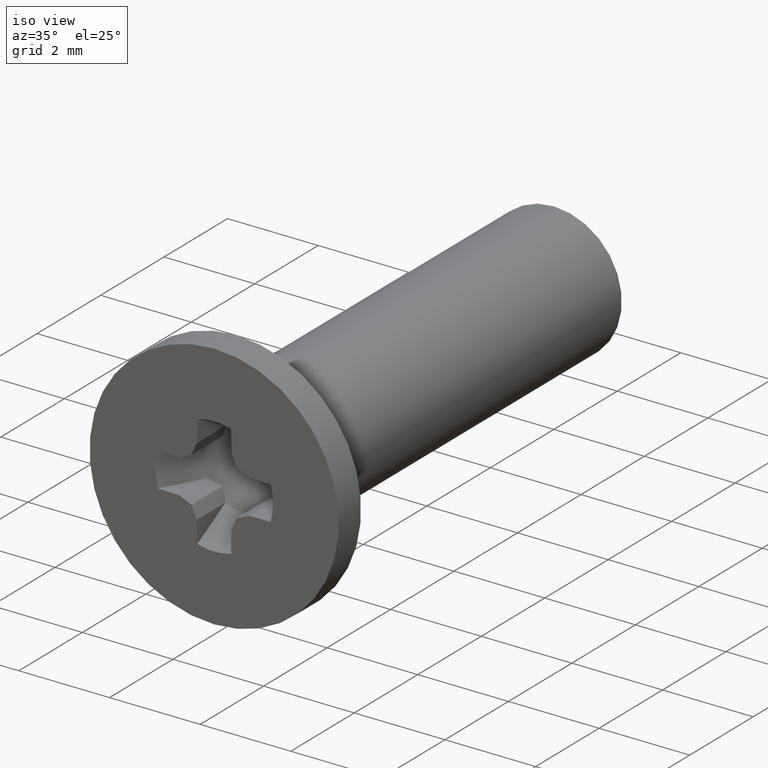
[diagram: clean part render]
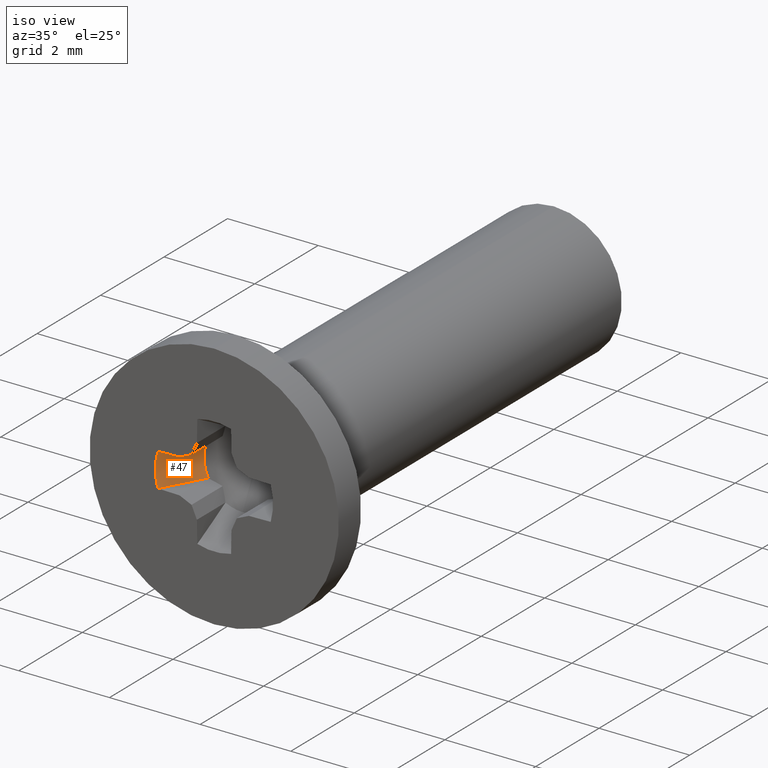
[diagram: same view with one face highlighted and labeled with its STEP entity id]
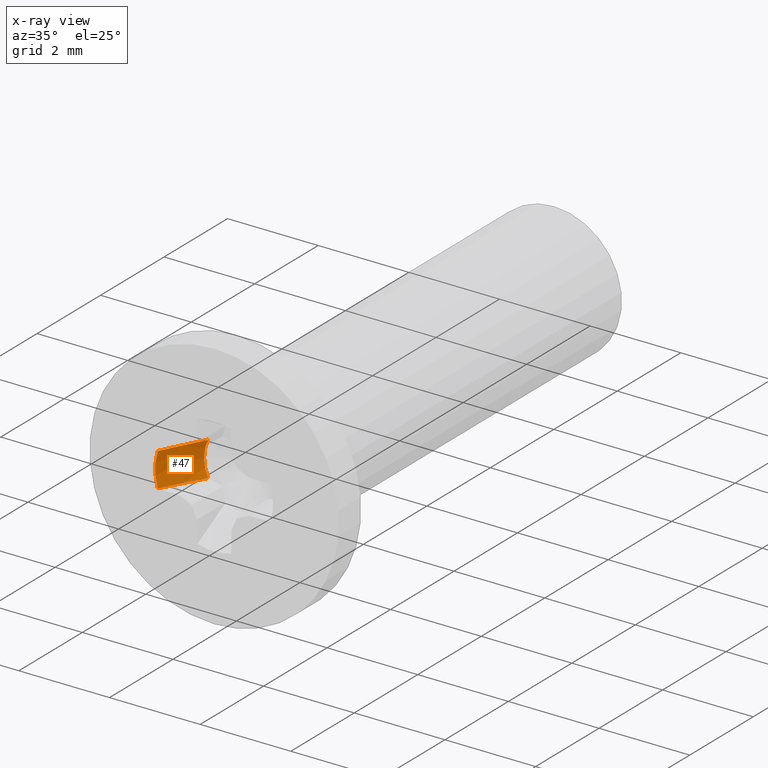
[diagram: x-ray of the same camera — body ghosted, the highlighted face saturated]
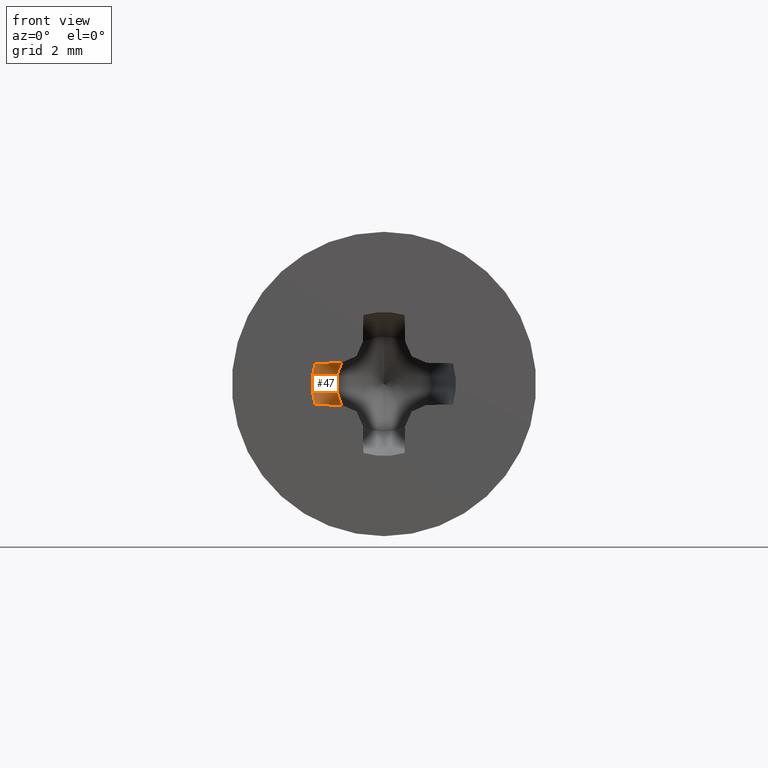
[diagram: same view with one face highlighted and labeled with its STEP entity id]
A machine part, iso view. The second image highlights one B-rep face of the part: STEP entity #47.
The next image is the same camera in x-ray: the body ghosted, the highlighted face saturated — about 0% of this face is hidden behind the body in this view.
A second angle (front view) of the same face is appended — the face is thin or edge-on in the first view.
In plain terms, the highlighted face is a freeform B-spline surface patch.
Its self-contained STEP definition (entity closure, byte-faithful):
#47=ADVANCED_FACE('',(#140),#139,.F.);
#139=( BOUNDED_SURFACE() B_SPLINE_SURFACE( 2,1,((#396,#397),(#398,#399),(#400,#401)), .UNSPECIFIED.,.F.,.F.,.F.) B_SPLINE_SURFACE_WITH_KNOTS((3,3),(2,2),(0.00000000000E+00,1.00000000000E+00),(0.00000000000E+00,1.00000000000E+00), .UNSPECIFIED. ) GEOMETRIC_REPRESENTATION_ITEM() RATIONAL_B_SPLINE_SURFACE(((1.00000000000E+00,1.00000000000E+00),(8.94749471780E-01,8.94749471780E-01),(1.00000000000E+00,1.00000000000E+00))) REPRESENTATION_ITEM('') SURFACE() );
#140=FACE_OUTER_BOUND('',#402,.T.);
#396=CARTESIAN_POINT('',(-7.65103363488E-01,2.00126283588E-01,3.81921402533E-01));
#397=CARTESIAN_POINT('',(-1.16340691654E+00,-7.00607308886E-01,5.80745063328E-01));
#398=CARTESIAN_POINT('',(-9.55719904852E-01,2.00126283588E-01,5.91765175603E-05));
#399=CARTESIAN_POINT('',(-1.45325612282E+00,-7.00607308886E-01,8.99830965487E-05));
#400=CARTESIAN_POINT('',(-7.65150653442E-01,2.00126283588E-01,-3.81826651861E-01));
#401=CARTESIAN_POINT('',(-1.16347882507E+00,-7.00607308886E-01,-5.80600986602E-01));
#402=EDGE_LOOP('',(#550,#551,#552,#553));
#550=ORIENTED_EDGE('',*,*,#676,.F.);
#551=ORIENTED_EDGE('',*,*,#683,.T.);
#552=ORIENTED_EDGE('',*,*,#665,.F.);
#553=ORIENTED_EDGE('',*,*,#684,.F.);
#665=EDGE_CURVE('',#732,#740,#741,.T.);
#676=EDGE_CURVE('',#809,#816,#817,.T.);
#683=EDGE_CURVE('',#809,#740,#862,.T.);
#684=EDGE_CURVE('',#816,#732,#868,.T.);
#732=VERTEX_POINT('',#1183);
#740=VERTEX_POINT('',#1188);
#741=(BOUNDED_CURVE() B_SPLINE_CURVE(3,(#1189,#1190,#1191,#1192),.UNSPECIFIED.,.F.,.F.) B_SPLINE_CURVE_WITH_KNOTS((4,4),(2.28899350592E-07,1.01965903334E-03),.UNSPECIFIED.) CURVE() GEOMETRIC_REPRESENTATION_ITEM() RATIONAL_B_SPLINE_CURVE((1.00000000000E+00,1.00000000000E+00,1.00000000000E+00,1.00000000000E+00)) REPRESENTATION_ITEM('') );
#809=VERTEX_POINT('',#1232);
#816=VERTEX_POINT('',#1236);
#817=(BOUNDED_CURVE() B_SPLINE_CURVE(3,(#1237,#1238,#1239,#1240),.UNSPECIFIED.,.F.,.F.) B_SPLINE_CURVE_WITH_KNOTS((4,4),(2.25290084567E-07,1.01965542407E-03),.UNSPECIFIED.) CURVE() GEOMETRIC_REPRESENTATION_ITEM() RATIONAL_B_SPLINE_CURVE((1.00000000000E+00,1.00000000000E+00,1.00000000000E+00,1.00000000000E+00)) REPRESENTATION_ITEM('') );
#862=CIRCLE('',#1267,1.30000000000E+00);
#868=CIRCLE('',#1271,8.55430032422E-01);
#1183=CARTESIAN_POINT('',(-7.65735392644E-01,1.99518974701E-01,-3.81326433417E-01));
#1188=CARTESIAN_POINT('',(-1.24535328831E+00,-7.00000000000E-01,-3.72954671907E-01));
#1189=CARTESIAN_POINT('',(-7.65735392644E-01,1.99518974701E-01,-3.81326433417E-01));
#1190=CARTESIAN_POINT('',(-9.31102957302E-01,-9.73899157991E-02,-3.78439931839E-01));
#1191=CARTESIAN_POINT('',(-1.08890150392E+00,-3.98335804523E-01,-3.75685547962E-01));
#1192=CARTESIAN_POINT('',(-1.24535328831E+00,-7.00000000000E-01,-3.72954671907E-01));
#1232=CARTESIAN_POINT('',(-1.24535328831E+00,-7.00000000000E-01,3.72954671907E-01));
#1236=CARTESIAN_POINT('',(-7.65735392643E-01,1.99518974701E-01,3.81326433417E-01));
#1237=CARTESIAN_POINT('',(-1.24535328831E+00,-7.00000000000E-01,3.72954671907E-01));
#1238=CARTESIAN_POINT('',(-1.08890150392E+00,-3.98335804523E-01,3.75685547962E-01));
#1239=CARTESIAN_POINT('',(-9.31102957301E-01,-9.73899157988E-02,3.78439931839E-01));
#1240=CARTESIAN_POINT('',(-7.65735392643E-01,1.99518974701E-01,3.81326433417E-01));
#1264=CARTESIAN_POINT('',(0.00000000000E+00,-7.00000000000E-01,0.00000000000E+00));
#1265=DIRECTION('',(0.00000000000E+00,-1.00000000000E+00,0.00000000000E+00));
#1266=DIRECTION('',(-0.00000000000E+00,-0.00000000000E+00,1.00000000000E+00));
#1267=AXIS2_PLACEMENT_3D('',#1264,#1265,#1266);
#1268=CARTESIAN_POINT('',(0.00000000000E+00,1.99518974701E-01,0.00000000000E+00));
#1269=DIRECTION('',(0.00000000000E+00,-1.00000000000E+00,0.00000000000E+00));
#1270=DIRECTION('',(-0.00000000000E+00,-0.00000000000E+00,1.00000000000E+00));
#1271=AXIS2_PLACEMENT_3D('',#1268,#1269,#1270);